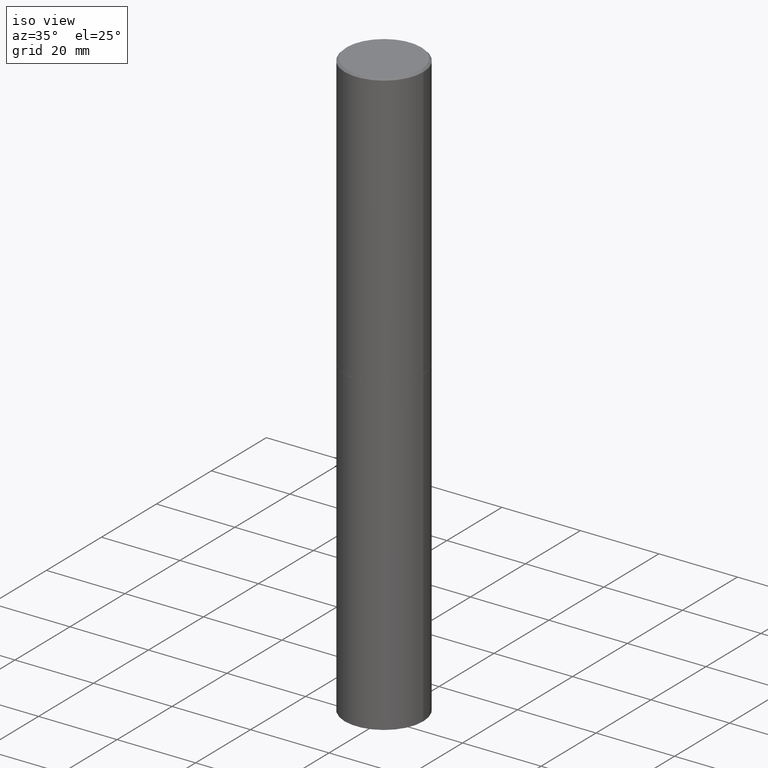
[diagram: clean part render]
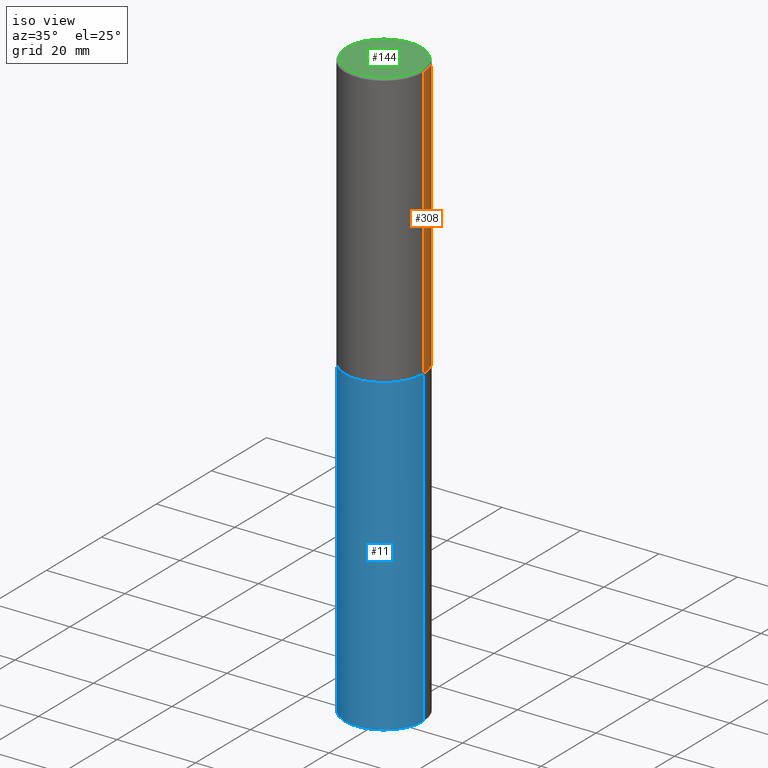
[diagram: same view with three faces highlighted in distinct colors, each labeled with its STEP entity id]
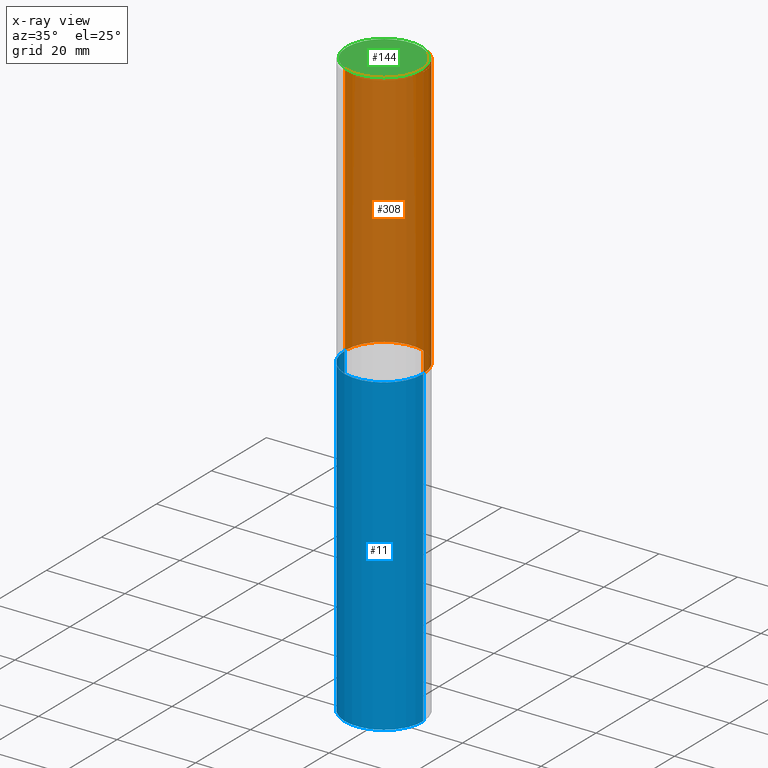
[diagram: x-ray of the same camera — body ghosted, the three highlighted faces saturated]
A machine part, iso view with three faces highlighted in distinct colors.
The next image is the same camera in x-ray (body ghosted, the three faces saturated) — at least one of them is partly hidden behind the body in this view.
Their STEP definitions:

[orange] entity #308 — the highlighted cylindrical surface (partial cylindrical patch) has radius 10 mm, axis along (-0, 0, 1).
#21 = VERTEX_POINT ( 'NONE', #38 ) ;
#22 = DIRECTION ( 'NONE',  ( -2.445468806185136597E-29, 3.491481338843145583E-15, 1.000000000000000000 ) ) ;
#24 = DIRECTION ( 'NONE',  ( -2.445468806185136597E-29, 3.491481338843145583E-15, 1.000000000000000000 ) ) ;
#26 = AXIS2_PLACEMENT_3D ( 'NONE', #305, #212, #255 ) ;
#28 = ORIENTED_EDGE ( 'NONE', *, *, #171, .T. ) ;
#33 = VERTEX_POINT ( 'NONE', #238 ) ;
#38 = CARTESIAN_POINT ( 'NONE',  ( 0.3937000000000000499, -1.236787434658406460E-14, -2.754899999999999682 ) ) ;
#41 = ORIENTED_EDGE ( 'NONE', *, *, #317, .T. ) ;
#43 = CIRCLE ( 'NONE', #169, 0.3937000000000000499 ) ;
#71 = AXIS2_PLACEMENT_3D ( 'NONE', #280, #24, #249 ) ;
#89 = DIRECTION ( 'NONE',  ( -2.445468806185136877E-29, 3.491481338843145188E-15, 1.000000000000000000 ) ) ;
#116 = CARTESIAN_POINT ( 'NONE',  ( 0.3936999999999998279, -2.749192406205082033E-15, 1.919750796630859051E-29 ) ) ;
#130 = EDGE_CURVE ( 'NONE', #21, #33, #196, .T. ) ;
#132 = LINE ( 'NONE', #166, #220 ) ;
#135 = EDGE_CURVE ( 'NONE', #33, #283, #312, .T. ) ;
#155 = ORIENTED_EDGE ( 'NONE', *, *, #130, .F. ) ;
#166 = CARTESIAN_POINT ( 'NONE',  ( -0.3936999999999998279, 2.797406750687513209E-15, -1.936584745033355614E-29 ) ) ;
#169 = AXIS2_PLACEMENT_3D ( 'NONE', #227, #22, #201 ) ;
#171 = EDGE_CURVE ( 'NONE', #21, #346, #43, .T. ) ;
#189 = FACE_OUTER_BOUND ( 'NONE', #194, .T. ) ;
#191 = ORIENTED_EDGE ( 'NONE', *, *, #135, .F. ) ;
#194 = EDGE_LOOP ( 'NONE', ( #28, #41, #191, #155 ) ) ;
#196 = LINE ( 'NONE', #116, #355 ) ;
#201 = DIRECTION ( 'NONE',  ( 1.000000000000000000, -6.982962677686267499E-15, 0.000000000000000000 ) ) ;
#212 = DIRECTION ( 'NONE',  ( -2.445468806185136597E-29, 3.491481338843145583E-15, 1.000000000000000000 ) ) ;
#220 = VECTOR ( 'NONE', #234, 39.37007874015748143 ) ;
#227 = CARTESIAN_POINT ( 'NONE',  ( 6.737022014159431508E-29, -9.618681940378979805E-15, -2.754899999999999682 ) ) ;
#232 = CYLINDRICAL_SURFACE ( 'NONE', #26, 0.3936999999999998279 ) ;
#234 = DIRECTION ( 'NONE',  ( -2.445468806185136877E-29, 3.491481338843145188E-15, 1.000000000000000000 ) ) ;
#238 = CARTESIAN_POINT ( 'NONE',  ( 0.3936999999999996613, -2.770807688499512973E-15, -0.02000000000000008715 ) ) ;
#249 = DIRECTION ( 'NONE',  ( 1.000000000000000000, -6.982962677686266711E-15, 0.000000000000000000 ) ) ;
#255 = DIRECTION ( 'NONE',  ( 1.000000000000000000, -6.982962677686266711E-15, 4.876176775795935793E-29 ) ) ;
#263 = CARTESIAN_POINT ( 'NONE',  ( -0.3936999999999996613, 2.679362779428217552E-15, -0.02000000000000008715 ) ) ;
#280 = CARTESIAN_POINT ( 'NONE',  ( 4.890937612370294178E-31, -6.982962677686321191E-17, -0.02000000000000008715 ) ) ;
#283 = VERTEX_POINT ( 'NONE', #263 ) ;
#305 = CARTESIAN_POINT ( 'NONE',  ( 0.000000000000000000, 0.000000000000000000, 0.000000000000000000 ) ) ;
#308 = ADVANCED_FACE ( 'NONE', ( #189 ), #232, .T. ) ;
#312 = CIRCLE ( 'NONE', #71, 0.3936999999999996613 ) ;
#317 = EDGE_CURVE ( 'NONE', #346, #283, #132, .T. ) ;
#346 = VERTEX_POINT ( 'NONE', #353 ) ;
#353 = CARTESIAN_POINT ( 'NONE',  ( -0.3937000000000000499, -2.046849032890405582E-15, -2.754899999999999682 ) ) ;
#355 = VECTOR ( 'NONE', #89, 39.37007874015748143 ) ;

[blue] entity #11 — the highlighted cylindrical surface (partial cylindrical patch) has radius 10 mm, axis along (-0, 0, 1).
#11 = ADVANCED_FACE ( 'NONE', ( #159 ), #260, .T. ) ;
#27 = CARTESIAN_POINT ( 'NONE',  ( 0.3937000000000000499, -1.237136582792290603E-14, -2.755899999999999572 ) ) ;
#51 = ORIENTED_EDGE ( 'NONE', *, *, #77, .T. ) ;
#54 = ORIENTED_EDGE ( 'NONE', *, *, #284, .F. ) ;
#66 = EDGE_CURVE ( 'NONE', #168, #98, #285, .T. ) ;
#75 = DIRECTION ( 'NONE',  ( 1.000000000000000000, -6.982962677686267499E-15, 0.000000000000000000 ) ) ;
#77 = EDGE_CURVE ( 'NONE', #168, #359, #216, .T. ) ;
#83 = CARTESIAN_POINT ( 'NONE',  ( -0.3937000000000000499, -1.232315148344049418E-14, -2.755899999999999572 ) ) ;
#93 = AXIS2_PLACEMENT_3D ( 'NONE', #126, #129, #236 ) ;
#98 = VERTEX_POINT ( 'NONE', #83 ) ;
#106 = VERTEX_POINT ( 'NONE', #27 ) ;
#114 = DIRECTION ( 'NONE',  ( -2.445468806185136597E-29, 3.491481338843145583E-15, 1.000000000000000000 ) ) ;
#120 = CARTESIAN_POINT ( 'NONE',  ( 0.3937000000000000499, -2.749192406205083217E-15, 1.919750796630860172E-29 ) ) ;
#126 = CARTESIAN_POINT ( 'NONE',  ( 0.000000000000000000, 0.000000000000000000, 0.000000000000000000 ) ) ;
#129 = DIRECTION ( 'NONE',  ( -2.445468806185136597E-29, 3.491481338843145583E-15, 1.000000000000000000 ) ) ;
#133 = DIRECTION ( 'NONE',  ( -2.445468806185136877E-29, 3.491481338843145188E-15, 1.000000000000000000 ) ) ;
#145 = CARTESIAN_POINT ( 'NONE',  ( -0.3937000000000000499, -1.232315148344049418E-14, -5.905499999999999972 ) ) ;
#154 = EDGE_CURVE ( 'NONE', #359, #106, #328, .T. ) ;
#159 = FACE_OUTER_BOUND ( 'NONE', #242, .T. ) ;
#168 = VERTEX_POINT ( 'NONE', #145 ) ;
#172 = VECTOR ( 'NONE', #334, 39.37007874015748143 ) ;
#209 = CARTESIAN_POINT ( 'NONE',  ( 6.739467482965617111E-29, -9.622173421717822812E-15, -2.755899999999999572 ) ) ;
#215 = VECTOR ( 'NONE', #133, 39.37007874015748143 ) ;
#216 = CIRCLE ( 'NONE', #268, 0.3937000000000000499 ) ;
#223 = DIRECTION ( 'NONE',  ( 1.000000000000000000, -6.982962677686267499E-15, 0.000000000000000000 ) ) ;
#236 = DIRECTION ( 'NONE',  ( 1.000000000000000000, -6.982962677686265922E-15, 4.876176775795935793E-29 ) ) ;
#242 = EDGE_LOOP ( 'NONE', ( #299, #51, #265, #54 ) ) ;
#260 = CYLINDRICAL_SURFACE ( 'NONE', #93, 0.3937000000000000499 ) ;
#264 = CARTESIAN_POINT ( 'NONE',  ( -0.3937000000000000499, 2.797406750687514786E-15, -1.936584745033356735E-29 ) ) ;
#265 = ORIENTED_EDGE ( 'NONE', *, *, #154, .T. ) ;
#268 = AXIS2_PLACEMENT_3D ( 'NONE', #290, #114, #223 ) ;
#284 = EDGE_CURVE ( 'NONE', #98, #106, #362, .T. ) ;
#285 = LINE ( 'NONE', #264, #215 ) ;
#290 = CARTESIAN_POINT ( 'NONE',  ( 1.444171603492632270E-28, -2.061894304653819197E-14, -5.905499999999999972 ) ) ;
#299 = ORIENTED_EDGE ( 'NONE', *, *, #66, .F. ) ;
#300 = AXIS2_PLACEMENT_3D ( 'NONE', #209, #314, #75 ) ;
#314 = DIRECTION ( 'NONE',  ( -2.445468806185136597E-29, 3.491481338843145583E-15, 1.000000000000000000 ) ) ;
#326 = CARTESIAN_POINT ( 'NONE',  ( 0.3937000000000000499, -2.336813545274327834E-14, -5.905499999999999972 ) ) ;
#328 = LINE ( 'NONE', #120, #172 ) ;
#334 = DIRECTION ( 'NONE',  ( -2.445468806185136877E-29, 3.491481338843145188E-15, 1.000000000000000000 ) ) ;
#359 = VERTEX_POINT ( 'NONE', #326 ) ;
#362 = CIRCLE ( 'NONE', #300, 0.3937000000000000499 ) ;

[green] entity #144 — the highlighted planar face has unit normal (0, -0, -1).
#35 = CARTESIAN_POINT ( 'NONE',  ( 0.3736999999999996436, -2.667287895133365992E-15, 8.537024980219274507E-18 ) ) ;
#80 = ORIENTED_EDGE ( 'NONE', *, *, #296, .T. ) ;
#86 = CARTESIAN_POINT ( 'NONE',  ( -0.3736999999999996436, 2.644447966039786297E-15, 8.537024980182450727E-18 ) ) ;
#95 = EDGE_CURVE ( 'NONE', #322, #160, #257, .T. ) ;
#124 = AXIS2_PLACEMENT_3D ( 'NONE', #319, #137, #243 ) ;
#137 = DIRECTION ( 'NONE',  ( -2.445468806185136597E-29, 3.491481338843145583E-15, 1.000000000000000000 ) ) ;
#144 = ADVANCED_FACE ( 'NONE', ( #358 ), #298, .F. ) ;
#153 = AXIS2_PLACEMENT_3D ( 'NONE', #309, #307, #184 ) ;
#160 = VERTEX_POINT ( 'NONE', #86 ) ;
#184 = DIRECTION ( 'NONE',  ( 1.000000000000000000, -6.982962677686266711E-15, 4.876212485538980163E-29 ) ) ;
#204 = CARTESIAN_POINT ( 'NONE',  ( 2.609533152651354648E-15, 0.3736999999999996436, -1.300498063835581828E-15 ) ) ;
#243 = DIRECTION ( 'NONE',  ( 1.000000000000000000, -6.982962677686266711E-15, 4.876212485538980163E-29 ) ) ;
#245 = EDGE_LOOP ( 'NONE', ( #80, #269 ) ) ;
#257 = CIRCLE ( 'NONE', #124, 0.3736999999999996436 ) ;
#269 = ORIENTED_EDGE ( 'NONE', *, *, #95, .T. ) ;
#271 = DIRECTION ( 'NONE',  ( 2.438088387897960049E-29, -3.491481338843145188E-15, -1.000000000000000000 ) ) ;
#296 = EDGE_CURVE ( 'NONE', #160, #322, #321, .T. ) ;
#298 = PLANE ( 'NONE',  #306 ) ;
#306 = AXIS2_PLACEMENT_3D ( 'NONE', #204, #271, #361 ) ;
#307 = DIRECTION ( 'NONE',  ( -2.445468806185136597E-29, 3.491481338843145583E-15, 1.000000000000000000 ) ) ;
#309 = CARTESIAN_POINT ( 'NONE',  ( -2.087702828670439639E-46, 2.980686340760894400E-32, 8.537024980200822558E-18 ) ) ;
#319 = CARTESIAN_POINT ( 'NONE',  ( -2.087702828670439639E-46, 2.980686340760894400E-32, 8.537024980200822558E-18 ) ) ;
#321 = CIRCLE ( 'NONE', #153, 0.3736999999999996436 ) ;
#322 = VERTEX_POINT ( 'NONE', #35 ) ;
#358 = FACE_OUTER_BOUND ( 'NONE', #245, .T. ) ;
#361 = DIRECTION ( 'NONE',  ( -1.000000000000000000, 6.982962677686265922E-15, -4.876176775795935793E-29 ) ) ;